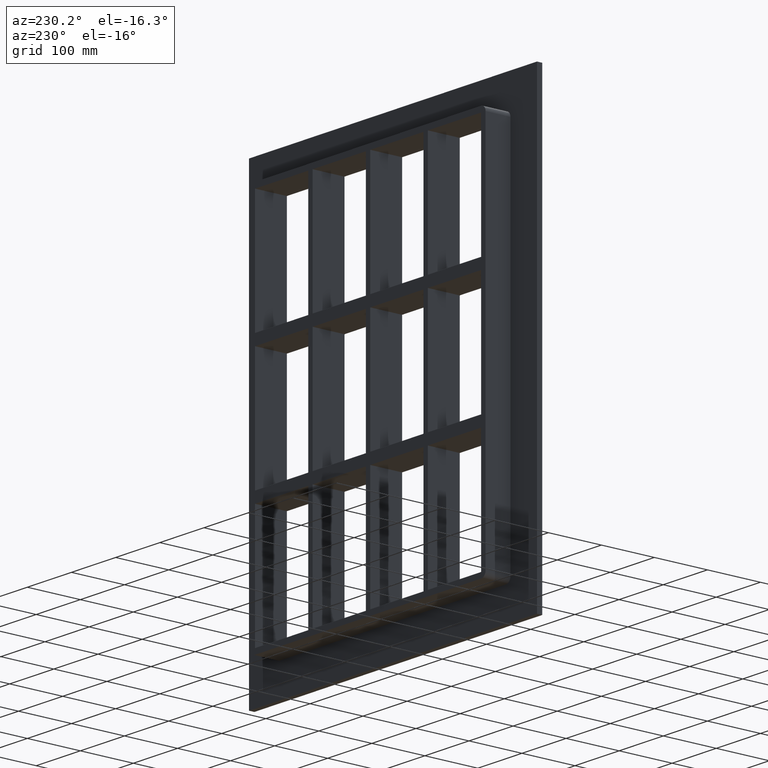
[diagram: clean part render]
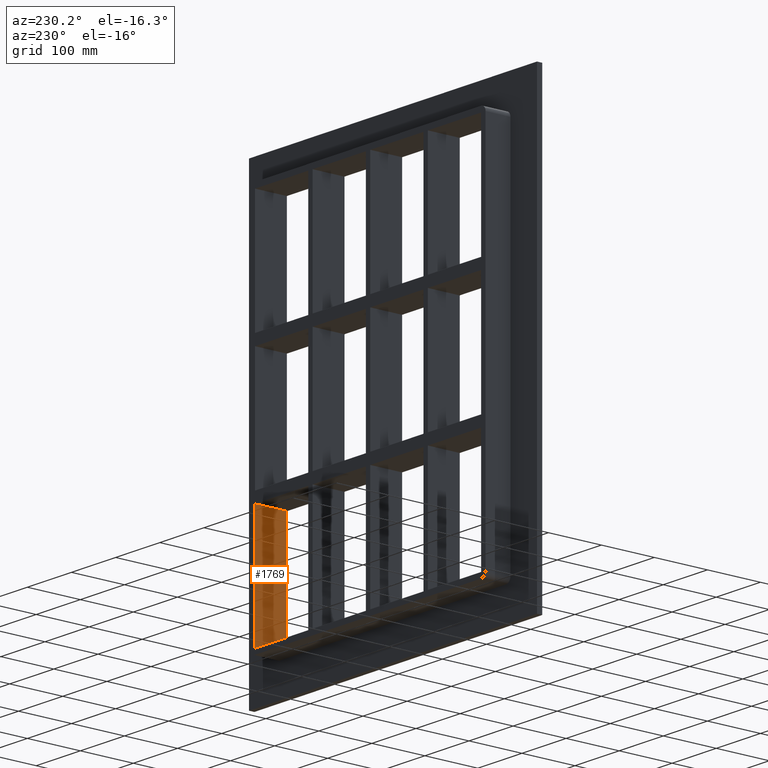
[diagram: same view with one face highlighted and labeled with its STEP entity id]
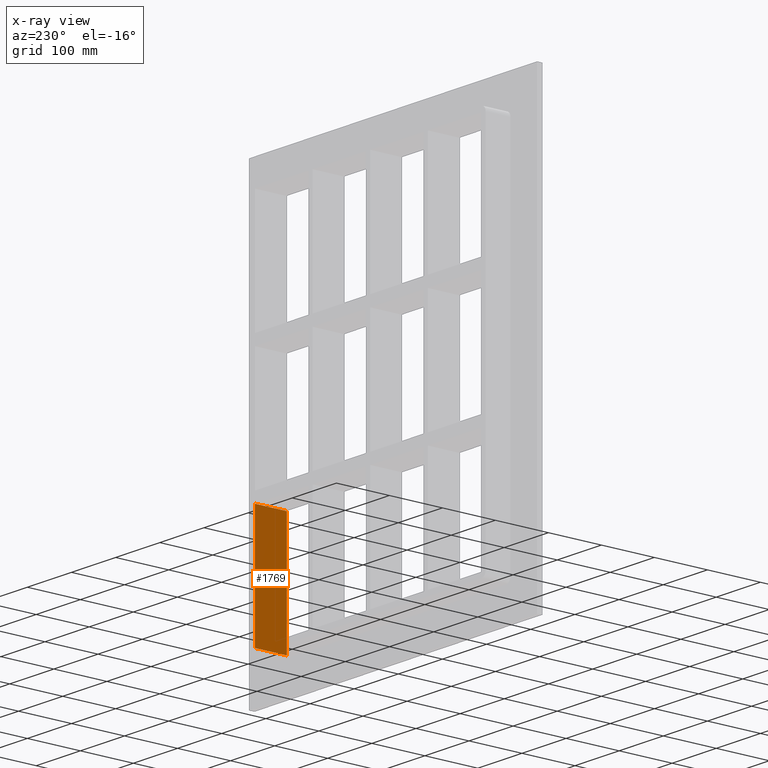
[diagram: x-ray of the same camera — body ghosted, the highlighted face saturated]
A machine part, auxiliary view. The second image highlights one B-rep face of the part: STEP entity #1769.
The next image is the same camera in x-ray: the body ghosted, the highlighted face saturated — about 0% of this face is hidden behind the body in this view.
In plain terms, the highlighted planar face has unit normal (1, 0, 0).
Its self-contained STEP definition (entity closure, byte-faithful):
#1007=CARTESIAN_POINT('',(255.99999999999997,57.0,-346.99999999999994));
#1008=VERTEX_POINT('',#1007);
#1015=CARTESIAN_POINT('',(256.00000000000364,57.0,-129.00000000000932));
#1016=VERTEX_POINT('',#1015);
#1017=CARTESIAN_POINT('',(255.99999999999997,57.0,-347.0));
#1018=DIRECTION('',(0.0,0.0,1.0));
#1019=VECTOR('',#1018,217.99999999999068);
#1020=LINE('',#1017,#1019);
#1021=EDGE_CURVE('',#1008,#1016,#1020,.T.);
#1307=CARTESIAN_POINT('',(255.99999999999997,-3.0,-346.99999999999994));
#1308=VERTEX_POINT('',#1307);
#1315=CARTESIAN_POINT('',(255.99999999999997,57.0,-346.99999999999994));
#1316=DIRECTION('',(0.0,-1.0,0.0));
#1317=VECTOR('',#1316,60.0);
#1318=LINE('',#1315,#1317);
#1319=EDGE_CURVE('',#1008,#1308,#1318,.T.);
#1532=CARTESIAN_POINT('',(256.00000000000364,-3.0,-129.00000000000932));
#1533=VERTEX_POINT('',#1532);
#1540=CARTESIAN_POINT('',(255.99999999999997,-3.0,-129.00000000000932));
#1541=DIRECTION('',(0.0,0.0,-1.0));
#1542=VECTOR('',#1541,217.99999999999068);
#1543=LINE('',#1540,#1542);
#1544=EDGE_CURVE('',#1533,#1308,#1543,.T.);
#1591=CARTESIAN_POINT('',(255.99999999999997,-3.0,-129.00000000000929));
#1592=DIRECTION('',(0.0,1.0,0.0));
#1593=VECTOR('',#1592,60.000000000000007);
#1594=LINE('',#1591,#1593);
#1595=EDGE_CURVE('',#1533,#1016,#1594,.T.);
#1758=CARTESIAN_POINT('',(255.99999999999997,0.0,347.0));
#1759=DIRECTION('',(1.0,0.0,0.0));
#1760=DIRECTION('',(0.0,0.0,-1.0));
#1761=AXIS2_PLACEMENT_3D('',#1758,#1759,#1760);
#1762=PLANE('',#1761);
#1763=ORIENTED_EDGE('',*,*,#1595,.T.);
#1764=ORIENTED_EDGE('',*,*,#1021,.F.);
#1765=ORIENTED_EDGE('',*,*,#1319,.T.);
#1766=ORIENTED_EDGE('',*,*,#1544,.F.);
#1767=EDGE_LOOP('',(#1763,#1764,#1765,#1766));
#1768=FACE_OUTER_BOUND('',#1767,.T.);
#1769=ADVANCED_FACE('',(#1768),#1762,.F.);